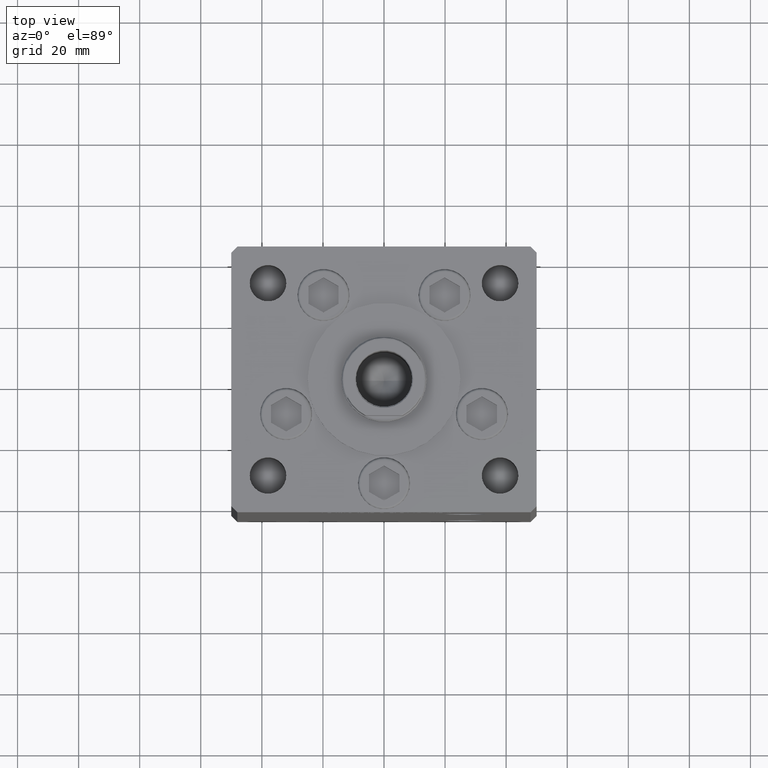
[diagram: clean part render]
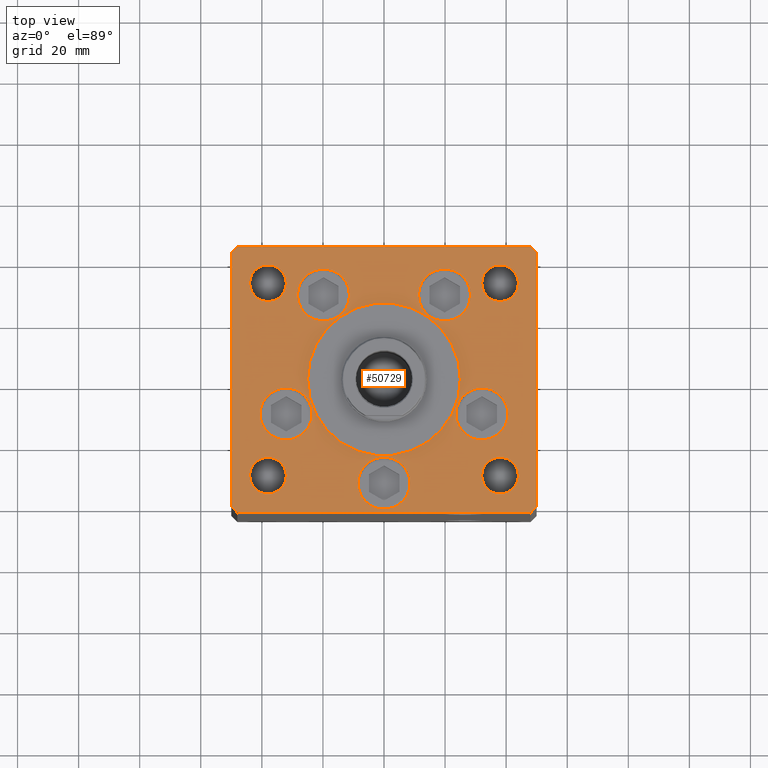
[diagram: same view with one face highlighted and labeled with its STEP entity id]
A machine part, top view. The second image highlights one B-rep face of the part: STEP entity #50729.
In plain terms, the highlighted planar face has unit normal (0, 0, 1).
Its self-contained STEP definition (entity closure, byte-faithful):
#62 = DIRECTION ( 'NONE',  ( 0.000000000000000000, 0.000000000000000000, 1.000000000000000000 ) ) ;
#641 = DIRECTION ( 'NONE',  ( -1.000000000000000000, 0.000000000000000000, 0.000000000000000000 ) ) ;
#831 = EDGE_LOOP ( 'NONE', ( #12435, #11161 ) ) ;
#915 = DIRECTION ( 'NONE',  ( 1.000000000000000000, 0.000000000000000000, 0.000000000000000000 ) ) ;
#1233 = AXIS2_PLACEMENT_3D ( 'NONE', #39777, #7342, #6824 ) ;
#2061 = CIRCLE ( 'NONE', #31517, 8.500000000000000000 ) ;
#2302 = EDGE_CURVE ( 'NONE', #44729, #34917, #32933, .T. ) ;
#2420 = FACE_BOUND ( 'NONE', #27123, .T. ) ;
#2685 = CARTESIAN_POINT ( 'NONE',  ( 38.00000000000000000, 31.50000000000000000, 0.000000000000000000 ) ) ;
#2835 = AXIS2_PLACEMENT_3D ( 'NONE', #22271, #5402, #915 ) ;
#2962 = DIRECTION ( 'NONE',  ( 1.000000000000000000, 0.000000000000000000, 0.000000000000000000 ) ) ;
#3888 = DIRECTION ( 'NONE',  ( 0.000000000000000000, 0.000000000000000000, 1.000000000000000000 ) ) ;
#3960 = EDGE_LOOP ( 'NONE', ( #39891, #12724 ) ) ;
#4005 = DIRECTION ( 'NONE',  ( -1.000000000000000000, 0.000000000000000000, 0.000000000000000000 ) ) ;
#4360 = CARTESIAN_POINT ( 'NONE',  ( -50.00000000000000000, -41.50000000000004263, 0.000000000000000000 ) ) ;
#4467 = DIRECTION ( 'NONE',  ( -0.7071067811865512365, 0.7071067811865439090, 0.000000000000000000 ) ) ;
#4522 = CARTESIAN_POINT ( 'NONE',  ( -38.00000000000000000, 31.50000000000000000, 0.000000000000000000 ) ) ;
#4674 = VERTEX_POINT ( 'NONE', #32415 ) ;
#4906 = VERTEX_POINT ( 'NONE', #23336 ) ;
#4964 = ORIENTED_EDGE ( 'NONE', *, *, #40099, .T. ) ;
#5312 = EDGE_LOOP ( 'NONE', ( #4964, #5866 ) ) ;
#5318 = EDGE_CURVE ( 'NONE', #30812, #4906, #8613, .T. ) ;
#5402 = DIRECTION ( 'NONE',  ( 0.000000000000000000, 0.000000000000000000, 1.000000000000000000 ) ) ;
#5461 = DIRECTION ( 'NONE',  ( 0.000000000000000000, 0.000000000000000000, 1.000000000000000000 ) ) ;
#5513 = CARTESIAN_POINT ( 'NONE',  ( 44.00000000000001421, -31.50000000000000711, 0.000000000000000000 ) ) ;
#5850 = DIRECTION ( 'NONE',  ( 0.000000000000000000, 0.000000000000000000, 1.000000000000000000 ) ) ;
#5866 = ORIENTED_EDGE ( 'NONE', *, *, #21092, .T. ) ;
#6202 = CARTESIAN_POINT ( 'NONE',  ( 0.000000000000000000, -34.00000000000000000, 0.000000000000000000 ) ) ;
#6272 = CARTESIAN_POINT ( 'NONE',  ( -40.55550741379015989, -11.33333333333332682, 0.000000000000000000 ) ) ;
#6523 = EDGE_CURVE ( 'NONE', #49636, #37391, #29656, .T. ) ;
#6628 = CARTESIAN_POINT ( 'NONE',  ( 19.82068048781374969, 27.62499999999998934, 0.000000000000000000 ) ) ;
#6630 = FACE_BOUND ( 'NONE', #5312, .T. ) ;
#6716 = VECTOR ( 'NONE', #11368, 1000.000000000000000 ) ;
#6784 = VERTEX_POINT ( 'NONE', #31347 ) ;
#6800 = AXIS2_PLACEMENT_3D ( 'NONE', #32049, #43408, #12275 ) ;
#6824 = DIRECTION ( 'NONE',  ( 1.000000000000000000, 0.000000000000000000, 0.000000000000000000 ) ) ;
#6968 = VERTEX_POINT ( 'NONE', #6272 ) ;
#6987 = EDGE_CURVE ( 'NONE', #43343, #39919, #22359, .T. ) ;
#7342 = DIRECTION ( 'NONE',  ( 0.000000000000000000, 0.000000000000000000, 1.000000000000000000 ) ) ;
#7958 = DIRECTION ( 'NONE',  ( -0.000000000000000000, -0.000000000000000000, -1.000000000000000000 ) ) ;
#8288 = AXIS2_PLACEMENT_3D ( 'NONE', #14407, #42398, #42132 ) ;
#8613 = CIRCLE ( 'NONE', #6800, 8.500000000000000000 ) ;
#8713 = DIRECTION ( 'NONE',  ( -0.000000000000000000, -0.000000000000000000, -1.000000000000000000 ) ) ;
#8828 = EDGE_CURVE ( 'NONE', #34917, #44729, #42271, .T. ) ;
#9191 = ORIENTED_EDGE ( 'NONE', *, *, #5318, .F. ) ;
#9490 = AXIS2_PLACEMENT_3D ( 'NONE', #20104, #62, #32235 ) ;
#9510 = CARTESIAN_POINT ( 'NONE',  ( 11.32068048781375147, 27.62499999999998934, 0.000000000000000000 ) ) ;
#9698 = ORIENTED_EDGE ( 'NONE', *, *, #17357, .T. ) ;
#9967 = EDGE_CURVE ( 'NONE', #11788, #16241, #40597, .T. ) ;
#10190 = AXIS2_PLACEMENT_3D ( 'NONE', #12911, #8713, #16352 ) ;
#10323 = DIRECTION ( 'NONE',  ( -0.000000000000000000, 0.000000000000000000, 1.000000000000000000 ) ) ;
#11161 = ORIENTED_EDGE ( 'NONE', *, *, #12927, .F. ) ;
#11220 = VERTEX_POINT ( 'NONE', #33064 ) ;
#11267 = EDGE_CURVE ( 'NONE', #21272, #22625, #46567, .T. ) ;
#11368 = DIRECTION ( 'NONE',  ( 0.000000000000000000, 1.000000000000000000, 0.000000000000000000 ) ) ;
#11468 = CARTESIAN_POINT ( 'NONE',  ( -48.00000000000000711, -43.50000000000002842, 0.000000000000000000 ) ) ;
#11561 = VERTEX_POINT ( 'NONE', #9510 ) ;
#11788 = VERTEX_POINT ( 'NONE', #19232 ) ;
#11867 = VECTOR ( 'NONE', #46355, 1000.000000000000000 ) ;
#11910 = AXIS2_PLACEMENT_3D ( 'NONE', #4522, #7958, #4005 ) ;
#12275 = DIRECTION ( 'NONE',  ( 1.000000000000000000, 0.000000000000000000, 0.000000000000000000 ) ) ;
#12299 = VERTEX_POINT ( 'NONE', #29306 ) ;
#12328 = ORIENTED_EDGE ( 'NONE', *, *, #21536, .T. ) ;
#12435 = ORIENTED_EDGE ( 'NONE', *, *, #23084, .F. ) ;
#12724 = ORIENTED_EDGE ( 'NONE', *, *, #45421, .F. ) ;
#12911 = CARTESIAN_POINT ( 'NONE',  ( -38.00000000000000000, 31.50000000000000000, 0.000000000000000000 ) ) ;
#12927 = EDGE_CURVE ( 'NONE', #19949, #24095, #23851, .T. ) ;
#13006 = DIRECTION ( 'NONE',  ( 0.000000000000000000, 0.000000000000000000, 1.000000000000000000 ) ) ;
#13677 = CARTESIAN_POINT ( 'NONE',  ( 19.82068048781374969, 27.62499999999998934, 0.000000000000000000 ) ) ;
#13753 = PLANE ( 'NONE',  #41918 ) ;
#13963 = AXIS2_PLACEMENT_3D ( 'NONE', #47006, #47524, #2962 ) ;
#14197 = CARTESIAN_POINT ( 'NONE',  ( 47.99999999999999289, 43.50000000000000000, 0.000000000000000000 ) ) ;
#14264 = FACE_BOUND ( 'NONE', #3960, .T. ) ;
#14407 = CARTESIAN_POINT ( 'NONE',  ( -32.05550741379015989, -11.33333333333332860, 0.000000000000000000 ) ) ;
#14449 = ORIENTED_EDGE ( 'NONE', *, *, #2302, .T. ) ;
#14994 = CARTESIAN_POINT ( 'NONE',  ( -19.82068048781374969, 27.62499999999998934, 0.000000000000000000 ) ) ;
#15431 = EDGE_LOOP ( 'NONE', ( #17638, #17451 ) ) ;
#15469 = DIRECTION ( 'NONE',  ( 1.000000000000000000, 0.000000000000000000, 0.000000000000000000 ) ) ;
#15846 = DIRECTION ( 'NONE',  ( 8.360113137237620037E-17, -1.000000000000000000, 0.000000000000000000 ) ) ;
#15887 = CARTESIAN_POINT ( 'NONE',  ( 50.00000000000000000, -41.49999999999992895, 0.000000000000000000 ) ) ;
#15954 = DIRECTION ( 'NONE',  ( -1.000000000000000000, -2.891205793294678326E-16, 0.000000000000000000 ) ) ;
#16241 = VERTEX_POINT ( 'NONE', #14197 ) ;
#16352 = DIRECTION ( 'NONE',  ( -1.000000000000000000, 0.000000000000000000, 0.000000000000000000 ) ) ;
#16516 = CARTESIAN_POINT ( 'NONE',  ( 48.00000000000000711, -43.49999999999992184, 0.000000000000000000 ) ) ;
#16562 = DIRECTION ( 'NONE',  ( 0.000000000000000000, 0.000000000000000000, 1.000000000000000000 ) ) ;
#16603 = EDGE_CURVE ( 'NONE', #35667, #6968, #2061, .T. ) ;
#17135 = EDGE_CURVE ( 'NONE', #37391, #49636, #46713, .T. ) ;
#17189 = ORIENTED_EDGE ( 'NONE', *, *, #6523, .F. ) ;
#17279 = AXIS2_PLACEMENT_3D ( 'NONE', #44297, #16562, #47723 ) ;
#17357 = EDGE_CURVE ( 'NONE', #34474, #27586, #36354, .T. ) ;
#17447 = DIRECTION ( 'NONE',  ( 1.000000000000000000, 0.000000000000000000, 0.000000000000000000 ) ) ;
#17451 = ORIENTED_EDGE ( 'NONE', *, *, #52099, .F. ) ;
#17537 = CIRCLE ( 'NONE', #8288, 8.500000000000000000 ) ;
#17638 = ORIENTED_EDGE ( 'NONE', *, *, #16603, .F. ) ;
#18484 = FACE_BOUND ( 'NONE', #19013, .T. ) ;
#18515 = ORIENTED_EDGE ( 'NONE', *, *, #21332, .F. ) ;
#19013 = EDGE_LOOP ( 'NONE', ( #18515, #9191 ) ) ;
#19154 = CARTESIAN_POINT ( 'NONE',  ( -32.00000000000000000, 31.50000000000000000, 0.000000000000000000 ) ) ;
#19232 = CARTESIAN_POINT ( 'NONE',  ( 50.00000000000000000, 41.50000000000000711, 0.000000000000000000 ) ) ;
#19349 = CIRCLE ( 'NONE', #51375, 8.500000000000000000 ) ;
#19502 = CARTESIAN_POINT ( 'NONE',  ( 32.00000000000000000, 31.50000000000000000, 0.000000000000000000 ) ) ;
#19559 = LINE ( 'NONE', #44095, #28295 ) ;
#19589 = DIRECTION ( 'NONE',  ( -0.000000000000000000, -0.000000000000000000, -1.000000000000000000 ) ) ;
#19700 = DIRECTION ( 'NONE',  ( 0.7071067811865474617, 0.7071067811865474617, 0.000000000000000000 ) ) ;
#19949 = VERTEX_POINT ( 'NONE', #27827 ) ;
#20104 = CARTESIAN_POINT ( 'NONE',  ( 0.000000000000000000, -6.938893903907228378E-15, 0.000000000000000000 ) ) ;
#20123 = CARTESIAN_POINT ( 'NONE',  ( -23.55550741379015989, -11.33333333333332860, 0.000000000000000000 ) ) ;
#21092 = EDGE_CURVE ( 'NONE', #34060, #46932, #32090, .T. ) ;
#21272 = VERTEX_POINT ( 'NONE', #24594 ) ;
#21332 = EDGE_CURVE ( 'NONE', #4906, #30812, #45541, .T. ) ;
#21536 = EDGE_CURVE ( 'NONE', #16241, #43343, #52126, .T. ) ;
#21546 = DIRECTION ( 'NONE',  ( 1.000000000000000000, 0.000000000000000000, 0.000000000000000000 ) ) ;
#21865 = EDGE_LOOP ( 'NONE', ( #9698, #38534, #26175, #40550, #41102, #12328, #35281, #45098 ) ) ;
#22067 = CARTESIAN_POINT ( 'NONE',  ( -32.05550741379015989, -11.33333333333332860, 0.000000000000000000 ) ) ;
#22271 = CARTESIAN_POINT ( 'NONE',  ( -38.00000000000000711, -31.50000000000000711, 0.000000000000000000 ) ) ;
#22359 = LINE ( 'NONE', #33701, #11867 ) ;
#22625 = VERTEX_POINT ( 'NONE', #33834 ) ;
#22718 = DIRECTION ( 'NONE',  ( 1.000000000000000000, 0.000000000000000000, 0.000000000000000000 ) ) ;
#22848 = EDGE_CURVE ( 'NONE', #35681, #11788, #40122, .T. ) ;
#23084 = EDGE_CURVE ( 'NONE', #24095, #19949, #19349, .T. ) ;
#23336 = CARTESIAN_POINT ( 'NONE',  ( 40.55550741379015989, -11.33333333333332860, 0.000000000000000000 ) ) ;
#23524 = CARTESIAN_POINT ( 'NONE',  ( -25.00000000000000000, -6.938893903907228378E-15, 0.000000000000000000 ) ) ;
#23782 = ORIENTED_EDGE ( 'NONE', *, *, #17135, .F. ) ;
#23851 = CIRCLE ( 'NONE', #30584, 8.500000000000000000 ) ;
#24095 = VERTEX_POINT ( 'NONE', #51598 ) ;
#24594 = CARTESIAN_POINT ( 'NONE',  ( 8.500000000000000000, -34.00000000000000000, 0.000000000000000000 ) ) ;
#25007 = VERTEX_POINT ( 'NONE', #35312 ) ;
#25654 = CIRCLE ( 'NONE', #51751, 8.500000000000000000 ) ;
#26135 = CARTESIAN_POINT ( 'NONE',  ( 32.00000000000000000, -31.50000000000000711, 0.000000000000000000 ) ) ;
#26175 = ORIENTED_EDGE ( 'NONE', *, *, #40424, .T. ) ;
#26511 = DIRECTION ( 'NONE',  ( 0.000000000000000000, 0.000000000000000000, 1.000000000000000000 ) ) ;
#26586 = ORIENTED_EDGE ( 'NONE', *, *, #38798, .F. ) ;
#26587 = EDGE_LOOP ( 'NONE', ( #45880, #46505 ) ) ;
#26626 = CARTESIAN_POINT ( 'NONE',  ( -44.00000000000000000, 31.50000000000000000, 0.000000000000000000 ) ) ;
#26692 = DIRECTION ( 'NONE',  ( 1.000000000000000000, 0.000000000000000000, 0.000000000000000000 ) ) ;
#27012 = AXIS2_PLACEMENT_3D ( 'NONE', #40162, #19589, #31188 ) ;
#27123 = EDGE_LOOP ( 'NONE', ( #26586, #38331 ) ) ;
#27586 = VERTEX_POINT ( 'NONE', #11468 ) ;
#27827 = CARTESIAN_POINT ( 'NONE',  ( -28.32068048781375325, 27.62499999999998934, 0.000000000000000000 ) ) ;
#27933 = DIRECTION ( 'NONE',  ( 1.000000000000000000, 0.000000000000000000, 0.000000000000000000 ) ) ;
#28295 = VECTOR ( 'NONE', #39347, 1000.000000000000000 ) ;
#28588 = CARTESIAN_POINT ( 'NONE',  ( 0.000000000000000000, -34.00000000000000000, 0.000000000000000000 ) ) ;
#29306 = CARTESIAN_POINT ( 'NONE',  ( -32.00000000000000000, -31.50000000000000711, 0.000000000000000000 ) ) ;
#29621 = DIRECTION ( 'NONE',  ( 1.000000000000000000, 0.000000000000000000, 0.000000000000000000 ) ) ;
#29656 = CIRCLE ( 'NONE', #36409, 5.999999999999998224 ) ;
#30109 = FACE_BOUND ( 'NONE', #40317, .T. ) ;
#30361 = FACE_OUTER_BOUND ( 'NONE', #21865, .T. ) ;
#30584 = AXIS2_PLACEMENT_3D ( 'NONE', #51626, #3888, #15469 ) ;
#30812 = VERTEX_POINT ( 'NONE', #48779 ) ;
#31188 = DIRECTION ( 'NONE',  ( -1.000000000000000000, 0.000000000000000000, 0.000000000000000000 ) ) ;
#31206 = VECTOR ( 'NONE', #15954, 1000.000000000000000 ) ;
#31347 = CARTESIAN_POINT ( 'NONE',  ( 25.00000000000000000, -3.877276906038844941E-15, 0.000000000000000000 ) ) ;
#31370 = AXIS2_PLACEMENT_3D ( 'NONE', #28588, #13006, #29621 ) ;
#31423 = CARTESIAN_POINT ( 'NONE',  ( -50.00000000000000711, 41.49999999999999289, 0.000000000000000000 ) ) ;
#31517 = AXIS2_PLACEMENT_3D ( 'NONE', #22067, #5461, #21546 ) ;
#31585 = CIRCLE ( 'NONE', #17279, 25.00000000000000000 ) ;
#31591 = EDGE_CURVE ( 'NONE', #33756, #6784, #33944, .T. ) ;
#32049 = CARTESIAN_POINT ( 'NONE',  ( 32.05550741379015989, -11.33333333333332860, 0.000000000000000000 ) ) ;
#32090 = CIRCLE ( 'NONE', #27012, 6.000000000000005329 ) ;
#32235 = DIRECTION ( 'NONE',  ( 1.000000000000000000, 0.000000000000000000, 0.000000000000000000 ) ) ;
#32324 = CARTESIAN_POINT ( 'NONE',  ( 47.99999999999999289, 43.50000000000000000, 0.000000000000000000 ) ) ;
#32382 = CIRCLE ( 'NONE', #41652, 8.500000000000000000 ) ;
#32415 = CARTESIAN_POINT ( 'NONE',  ( -44.00000000000001421, -31.50000000000000711, 0.000000000000000000 ) ) ;
#32900 = CARTESIAN_POINT ( 'NONE',  ( -50.00000000000000000, -41.50000000000004263, 0.000000000000000000 ) ) ;
#32933 = CIRCLE ( 'NONE', #10190, 5.999999999999998224 ) ;
#33064 = CARTESIAN_POINT ( 'NONE',  ( 28.32068048781375325, 27.62499999999998934, 0.000000000000000000 ) ) ;
#33701 = CARTESIAN_POINT ( 'NONE',  ( -48.00000000000000000, 43.49999999999997158, 0.000000000000000000 ) ) ;
#33756 = VERTEX_POINT ( 'NONE', #23524 ) ;
#33834 = CARTESIAN_POINT ( 'NONE',  ( -8.500000000000000000, -34.00000000000000000, 0.000000000000000000 ) ) ;
#33944 = CIRCLE ( 'NONE', #9490, 25.00000000000000000 ) ;
#34060 = VERTEX_POINT ( 'NONE', #26135 ) ;
#34474 = VERTEX_POINT ( 'NONE', #4360 ) ;
#34586 = DIRECTION ( 'NONE',  ( 0.000000000000000000, 0.000000000000000000, 1.000000000000000000 ) ) ;
#34655 = EDGE_CURVE ( 'NONE', #12299, #4674, #48366, .T. ) ;
#34849 = FACE_BOUND ( 'NONE', #47424, .T. ) ;
#34917 = VERTEX_POINT ( 'NONE', #26626 ) ;
#35281 = ORIENTED_EDGE ( 'NONE', *, *, #6987, .T. ) ;
#35312 = CARTESIAN_POINT ( 'NONE',  ( 48.00000000000000711, -43.49999999999992184, 0.000000000000000000 ) ) ;
#35667 = VERTEX_POINT ( 'NONE', #20123 ) ;
#35681 = VERTEX_POINT ( 'NONE', #15887 ) ;
#36245 = EDGE_CURVE ( 'NONE', #22625, #21272, #25654, .T. ) ;
#36354 = LINE ( 'NONE', #32900, #48450 ) ;
#36409 = AXIS2_PLACEMENT_3D ( 'NONE', #2685, #46736, #26692 ) ;
#36788 = CARTESIAN_POINT ( 'NONE',  ( 38.00000000000000711, -31.50000000000000711, 0.000000000000000000 ) ) ;
#37096 = CARTESIAN_POINT ( 'NONE',  ( -48.00000000000000000, 43.49999999999997158, 0.000000000000000000 ) ) ;
#37391 = VERTEX_POINT ( 'NONE', #46073 ) ;
#37864 = DIRECTION ( 'NONE',  ( 1.000000000000000000, 0.000000000000000000, 0.000000000000000000 ) ) ;
#38142 = CARTESIAN_POINT ( 'NONE',  ( -50.00000000000000711, 41.49999999999999289, 0.000000000000000000 ) ) ;
#38331 = ORIENTED_EDGE ( 'NONE', *, *, #41523, .F. ) ;
#38534 = ORIENTED_EDGE ( 'NONE', *, *, #45420, .T. ) ;
#38553 = FACE_BOUND ( 'NONE', #26587, .T. ) ;
#38798 = EDGE_CURVE ( 'NONE', #11220, #11561, #40865, .T. ) ;
#39347 = DIRECTION ( 'NONE',  ( 1.000000000000000000, 1.156482317317871331E-15, 0.000000000000000000 ) ) ;
#39395 = EDGE_CURVE ( 'NONE', #6784, #33756, #31585, .T. ) ;
#39777 = CARTESIAN_POINT ( 'NONE',  ( 38.00000000000000000, 31.50000000000000000, 0.000000000000000000 ) ) ;
#39891 = ORIENTED_EDGE ( 'NONE', *, *, #34655, .F. ) ;
#39919 = VERTEX_POINT ( 'NONE', #38142 ) ;
#39960 = AXIS2_PLACEMENT_3D ( 'NONE', #36788, #41501, #641 ) ;
#40099 = EDGE_CURVE ( 'NONE', #46932, #34060, #43296, .T. ) ;
#40122 = LINE ( 'NONE', #43553, #6716 ) ;
#40162 = CARTESIAN_POINT ( 'NONE',  ( 38.00000000000000711, -31.50000000000000711, 0.000000000000000000 ) ) ;
#40317 = EDGE_LOOP ( 'NONE', ( #14449, #42284 ) ) ;
#40424 = EDGE_CURVE ( 'NONE', #25007, #35681, #44752, .T. ) ;
#40550 = ORIENTED_EDGE ( 'NONE', *, *, #22848, .T. ) ;
#40597 = LINE ( 'NONE', #44816, #51575 ) ;
#40785 = VECTOR ( 'NONE', #19700, 1000.000000000000114 ) ;
#40865 = CIRCLE ( 'NONE', #46658, 8.500000000000000000 ) ;
#41102 = ORIENTED_EDGE ( 'NONE', *, *, #9967, .T. ) ;
#41501 = DIRECTION ( 'NONE',  ( -0.000000000000000000, -0.000000000000000000, -1.000000000000000000 ) ) ;
#41523 = EDGE_CURVE ( 'NONE', #11561, #11220, #32382, .T. ) ;
#41652 = AXIS2_PLACEMENT_3D ( 'NONE', #13677, #45607, #49832 ) ;
#41726 = CARTESIAN_POINT ( 'NONE',  ( 32.05550741379015989, -11.33333333333332860, 0.000000000000000000 ) ) ;
#41767 = VECTOR ( 'NONE', #15846, 1000.000000000000000 ) ;
#41918 = AXIS2_PLACEMENT_3D ( 'NONE', #46463, #10323, #22718 ) ;
#42132 = DIRECTION ( 'NONE',  ( 1.000000000000000000, 0.000000000000000000, 0.000000000000000000 ) ) ;
#42271 = CIRCLE ( 'NONE', #11910, 5.999999999999998224 ) ;
#42284 = ORIENTED_EDGE ( 'NONE', *, *, #8828, .T. ) ;
#42398 = DIRECTION ( 'NONE',  ( 0.000000000000000000, 0.000000000000000000, 1.000000000000000000 ) ) ;
#42463 = ORIENTED_EDGE ( 'NONE', *, *, #11267, .F. ) ;
#43017 = FACE_BOUND ( 'NONE', #52199, .T. ) ;
#43296 = CIRCLE ( 'NONE', #39960, 6.000000000000005329 ) ;
#43343 = VERTEX_POINT ( 'NONE', #37096 ) ;
#43408 = DIRECTION ( 'NONE',  ( 0.000000000000000000, 0.000000000000000000, 1.000000000000000000 ) ) ;
#43553 = CARTESIAN_POINT ( 'NONE',  ( 50.00000000000000000, -41.49999999999992895, 0.000000000000000000 ) ) ;
#44095 = CARTESIAN_POINT ( 'NONE',  ( -48.00000000000000711, -43.50000000000002842, 0.000000000000000000 ) ) ;
#44297 = CARTESIAN_POINT ( 'NONE',  ( 0.000000000000000000, -6.938893903907228378E-15, 0.000000000000000000 ) ) ;
#44712 = AXIS2_PLACEMENT_3D ( 'NONE', #41726, #34586, #17447 ) ;
#44729 = VERTEX_POINT ( 'NONE', #19154 ) ;
#44752 = LINE ( 'NONE', #16516, #40785 ) ;
#44816 = CARTESIAN_POINT ( 'NONE',  ( 50.00000000000000000, 41.50000000000000711, 0.000000000000000000 ) ) ;
#45098 = ORIENTED_EDGE ( 'NONE', *, *, #45465, .T. ) ;
#45420 = EDGE_CURVE ( 'NONE', #27586, #25007, #19559, .T. ) ;
#45421 = EDGE_CURVE ( 'NONE', #4674, #12299, #48511, .T. ) ;
#45465 = EDGE_CURVE ( 'NONE', #39919, #34474, #50971, .T. ) ;
#45541 = CIRCLE ( 'NONE', #44712, 8.500000000000000000 ) ;
#45607 = DIRECTION ( 'NONE',  ( 0.000000000000000000, 0.000000000000000000, 1.000000000000000000 ) ) ;
#45880 = ORIENTED_EDGE ( 'NONE', *, *, #31591, .F. ) ;
#46073 = CARTESIAN_POINT ( 'NONE',  ( 44.00000000000000000, 31.50000000000000000, 0.000000000000000000 ) ) ;
#46355 = DIRECTION ( 'NONE',  ( -0.7071067811865536790, -0.7071067811865414665, 0.000000000000000000 ) ) ;
#46461 = DIRECTION ( 'NONE',  ( 1.000000000000000000, 0.000000000000000000, 0.000000000000000000 ) ) ;
#46463 = CARTESIAN_POINT ( 'NONE',  ( 0.000000000000000000, 0.000000000000000000, 0.000000000000000000 ) ) ;
#46505 = ORIENTED_EDGE ( 'NONE', *, *, #39395, .F. ) ;
#46567 = CIRCLE ( 'NONE', #31370, 8.500000000000000000 ) ;
#46658 = AXIS2_PLACEMENT_3D ( 'NONE', #6628, #5850, #46461 ) ;
#46713 = CIRCLE ( 'NONE', #1233, 5.999999999999998224 ) ;
#46736 = DIRECTION ( 'NONE',  ( 0.000000000000000000, 0.000000000000000000, 1.000000000000000000 ) ) ;
#46932 = VERTEX_POINT ( 'NONE', #5513 ) ;
#47006 = CARTESIAN_POINT ( 'NONE',  ( -38.00000000000000711, -31.50000000000000711, 0.000000000000000000 ) ) ;
#47183 = DIRECTION ( 'NONE',  ( 0.000000000000000000, 0.000000000000000000, 1.000000000000000000 ) ) ;
#47231 = ORIENTED_EDGE ( 'NONE', *, *, #36245, .F. ) ;
#47424 = EDGE_LOOP ( 'NONE', ( #42463, #47231 ) ) ;
#47524 = DIRECTION ( 'NONE',  ( 0.000000000000000000, 0.000000000000000000, 1.000000000000000000 ) ) ;
#47723 = DIRECTION ( 'NONE',  ( 1.000000000000000000, 0.000000000000000000, 0.000000000000000000 ) ) ;
#48366 = CIRCLE ( 'NONE', #2835, 6.000000000000005329 ) ;
#48450 = VECTOR ( 'NONE', #48999, 1000.000000000000000 ) ;
#48511 = CIRCLE ( 'NONE', #13963, 6.000000000000005329 ) ;
#48779 = CARTESIAN_POINT ( 'NONE',  ( 23.55550741379015633, -11.33333333333332682, 0.000000000000000000 ) ) ;
#48999 = DIRECTION ( 'NONE',  ( 0.7071067811865487940, -0.7071067811865463515, 0.000000000000000000 ) ) ;
#49636 = VERTEX_POINT ( 'NONE', #19502 ) ;
#49832 = DIRECTION ( 'NONE',  ( 1.000000000000000000, 0.000000000000000000, 0.000000000000000000 ) ) ;
#50426 = FACE_BOUND ( 'NONE', #831, .T. ) ;
#50729 = ADVANCED_FACE ( 'NONE', ( #38553, #50426, #2420, #18484, #34849, #50941, #30109, #43017, #14264, #30361, #6630 ), #13753, .T. ) ;
#50941 = FACE_BOUND ( 'NONE', #15431, .T. ) ;
#50971 = LINE ( 'NONE', #31423, #41767 ) ;
#51375 = AXIS2_PLACEMENT_3D ( 'NONE', #14994, #47183, #27933 ) ;
#51575 = VECTOR ( 'NONE', #4467, 999.9999999999998863 ) ;
#51598 = CARTESIAN_POINT ( 'NONE',  ( -11.32068048781375147, 27.62499999999998934, 0.000000000000000000 ) ) ;
#51626 = CARTESIAN_POINT ( 'NONE',  ( -19.82068048781374969, 27.62499999999998934, 0.000000000000000000 ) ) ;
#51751 = AXIS2_PLACEMENT_3D ( 'NONE', #6202, #26511, #37864 ) ;
#52099 = EDGE_CURVE ( 'NONE', #6968, #35667, #17537, .T. ) ;
#52126 = LINE ( 'NONE', #32324, #31206 ) ;
#52199 = EDGE_LOOP ( 'NONE', ( #23782, #17189 ) ) ;